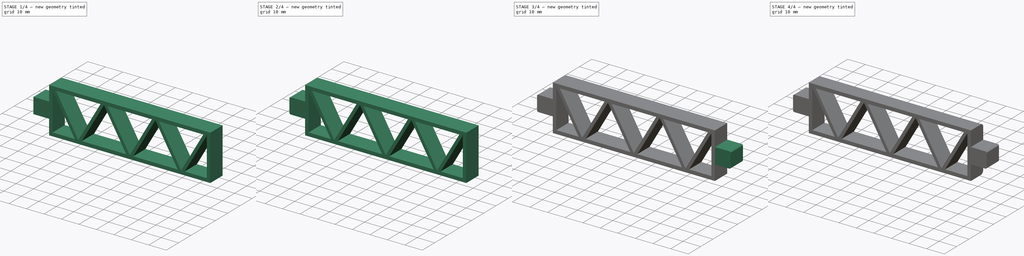
[diagram: build sequence overview — one tinted view per stage of 4, left to right]
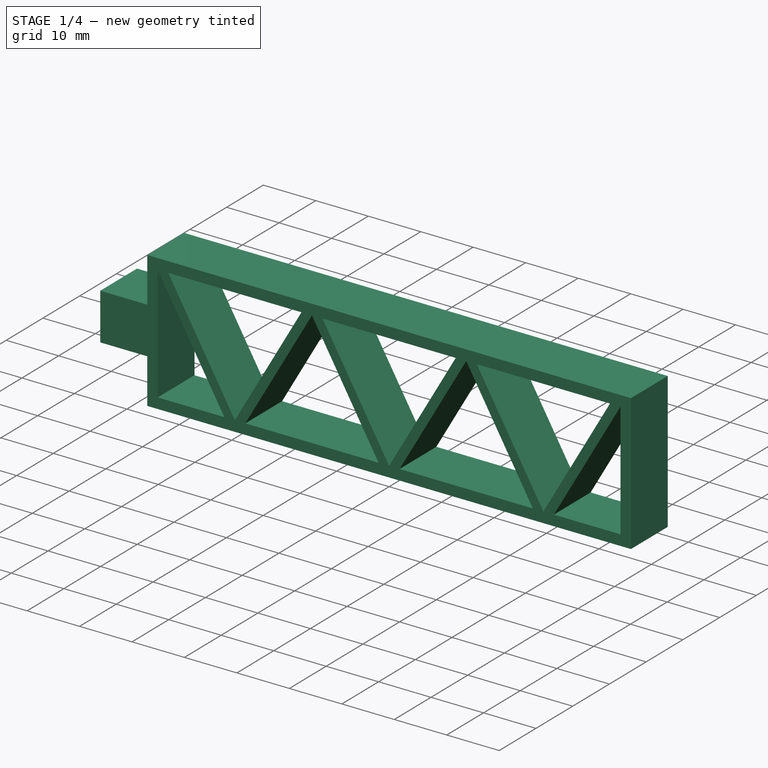
[diagram: stage 1 of 4 — iso view after this stage's code; geometry added in this stage tinted green]
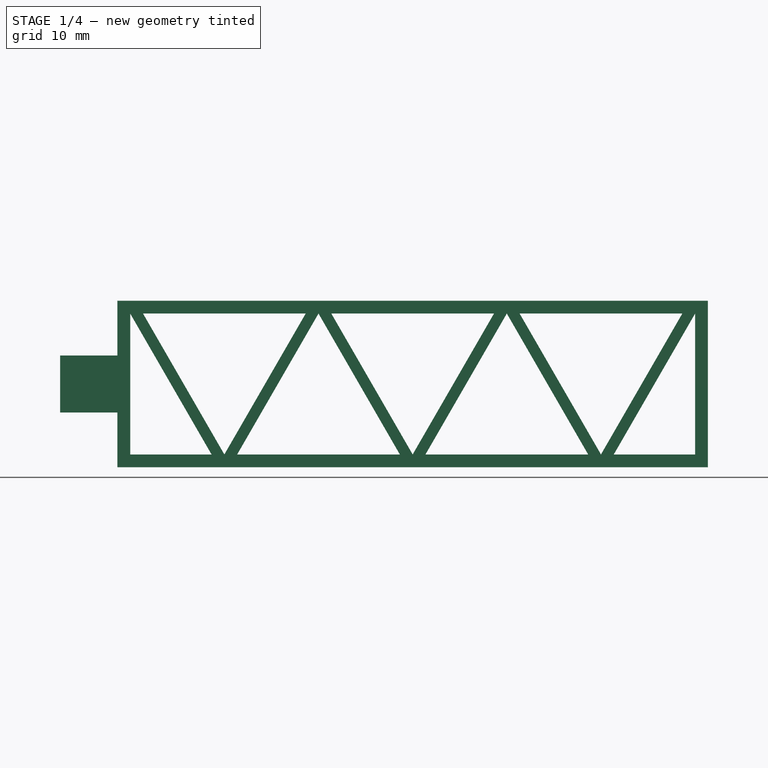
[diagram: stage 1 of 4 — front view after this stage's code; geometry added in this stage tinted green]
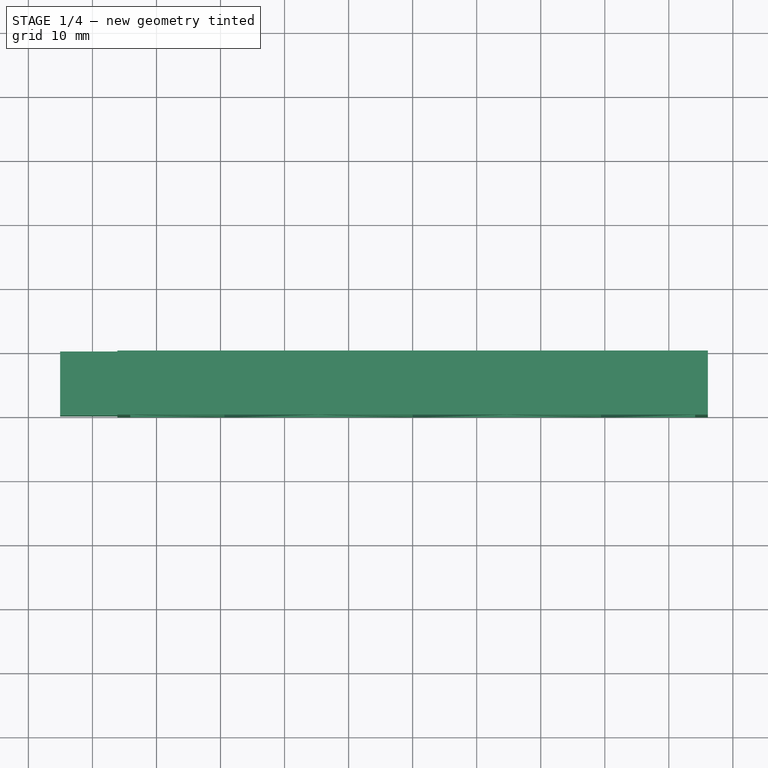
[diagram: stage 1 of 4 — top view after this stage's code; geometry added in this stage tinted green]
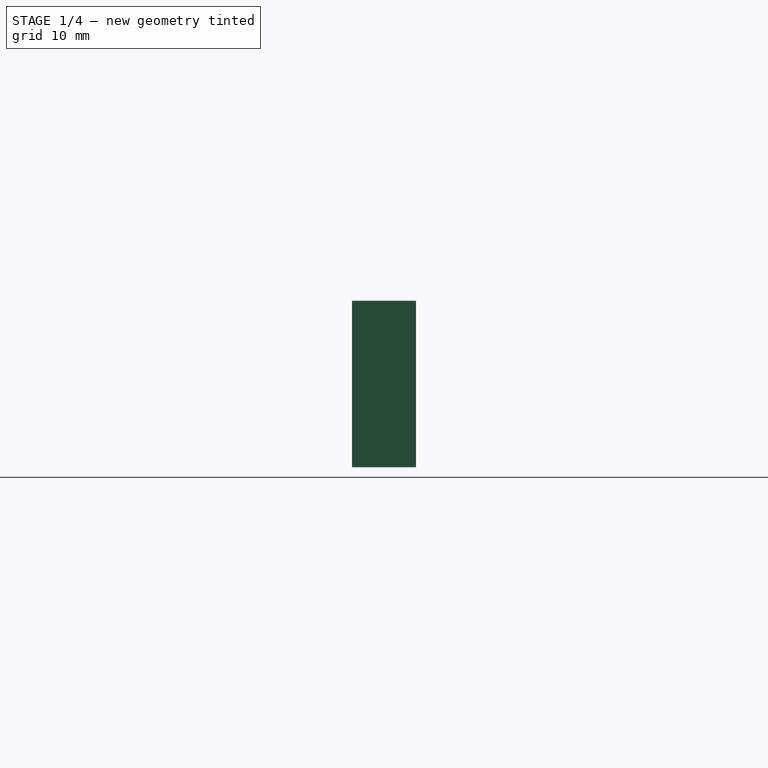
[diagram: stage 1 of 4 — right view after this stage's code; geometry added in this stage tinted green]
FCSTD DOCUMENT  (FreeCAD 0.18R16093 +53 (Git))
Label: been
License: All rights reserved
LicenseURL: http://en.wikipedia.org/wiki/All_rights_reserved
objects: PartDesign::Chamfer×4, Sketcher::SketchObject×3, PartDesign::Pad×3, PartDesign::Fillet×2, PartDesign::Body×1
note: 16 computed .brp shape members not serialized (recipe doc carries the construction recipe); baked Part::Feature solids carry a one-line shape summary decoded from their .brp

FEATURE [Sketcher::SketchObject] Sketch
  MapMode = 5
  Placement = pos=(0,0,0) rot=(1,0,0;1.5708rad)
  Support = -> [XZ_Plane]
  sketch-geometry (35):
    g0: LineSegment StartX=-46.1051 StartY=13 StartZ=0 EndX=46.1051 EndY=13 EndZ=0
    g1: LineSegment StartX=46.1051 StartY=13 StartZ=0 EndX=46.1051 EndY=-13 EndZ=0
    g2: LineSegment StartX=46.1051 StartY=-13 StartZ=0 EndX=-46.1051 EndY=-13 EndZ=0
    g3: LineSegment StartX=-46.1051 StartY=-13 StartZ=0 EndX=-46.1051 EndY=13 EndZ=0
    g4: LineSegment [constr] StartX=-44.1051 StartY=11 StartZ=0 EndX=44.1051 EndY=11 EndZ=0
    g5: LineSegment [constr] StartX=44.1051 StartY=11 StartZ=0 EndX=44.1051 EndY=-11 EndZ=0
    g6: LineSegment [constr] StartX=44.1051 StartY=-11 StartZ=0 EndX=-44.1051 EndY=-11 EndZ=0
    g7: LineSegment [constr] StartX=-44.1051 StartY=-11 StartZ=0 EndX=-44.1051 EndY=11 EndZ=0
    g8: LineSegment StartX=-44.1051 StartY=11 StartZ=0 EndX=-44.1051 EndY=-11 EndZ=0
    g9: LineSegment StartX=-44.1051 StartY=-11 StartZ=0 EndX=-31.4034 EndY=-11 EndZ=0
    g10: LineSegment StartX=-31.4034 StartY=-11 StartZ=0 EndX=-44.1051 EndY=11 EndZ=0
    g11: LineSegment StartX=-29.4034 StartY=-11 StartZ=0 EndX=-42.1051 EndY=11 EndZ=0
    g12: LineSegment StartX=-42.1051 StartY=11 StartZ=0 EndX=-16.7017 EndY=11 EndZ=0
    g13: LineSegment StartX=-16.7017 StartY=11 StartZ=0 EndX=-29.4034 EndY=-11 EndZ=0
    g14: LineSegment StartX=-14.7017 StartY=11 StartZ=0 EndX=-27.4034 EndY=-11 EndZ=0
    g15: LineSegment StartX=-27.4034 StartY=-11 StartZ=0 EndX=-2 EndY=-11 EndZ=0
    g16: LineSegment StartX=-2 StartY=-11 StartZ=0 EndX=-14.7017 EndY=11 EndZ=0
    g17: LineSegment StartX=-12.7017 StartY=11 StartZ=0 EndX=12.7017 EndY=11 EndZ=0
    g18: LineSegment StartX=12.7017 StartY=11 StartZ=0 EndX=7.709e-13 EndY=-11 EndZ=0
    g19: LineSegment StartX=7.702e-13 StartY=-11 StartZ=0 EndX=-12.7017 EndY=11 EndZ=0
    g20: LineSegment StartX=14.7017 StartY=11 StartZ=0 EndX=2 EndY=-11 EndZ=0
    g21: LineSegment StartX=2 StartY=-11 StartZ=0 EndX=27.4034 EndY=-11 EndZ=0
    g22: LineSegment StartX=27.4034 StartY=-11 StartZ=0 EndX=14.7017 EndY=11 EndZ=0
    g23: LineSegment StartX=16.7017 StartY=11 StartZ=0 EndX=42.1051 EndY=11 EndZ=0
    g24: LineSegment StartX=42.1051 StartY=11 StartZ=0 EndX=29.4034 EndY=-11 EndZ=0
    g25: LineSegment StartX=29.4034 StartY=-11 StartZ=0 EndX=16.7017 EndY=11 EndZ=0
    g26: LineSegment StartX=44.1051 StartY=11 StartZ=0 EndX=44.1051 EndY=-11 EndZ=0
    g27: LineSegment StartX=44.1051 StartY=-11 StartZ=0 EndX=31.4034 EndY=-11 EndZ=0
    g28: LineSegment StartX=31.4034 StartY=-11 StartZ=0 EndX=44.1051 EndY=11 EndZ=0
    g29: LineSegment [constr] StartX=-44.1051 StartY=11 StartZ=0 EndX=-42.1051 EndY=11 EndZ=0
    g30: LineSegment [constr] StartX=-16.7017 StartY=11 StartZ=0 EndX=-14.7017 EndY=11 EndZ=0
    g31: LineSegment [constr] StartX=-14.7017 StartY=11 StartZ=0 EndX=-12.7017 EndY=11 EndZ=0
    g32: LineSegment [constr] StartX=12.7017 StartY=11 StartZ=0 EndX=14.7017 EndY=11 EndZ=0
    g33: LineSegment [constr] StartX=14.7017 StartY=11 StartZ=0 EndX=16.7017 EndY=11 EndZ=0
    g34: LineSegment [constr] StartX=42.1051 StartY=11 StartZ=0 EndX=44.1051 EndY=11 EndZ=0
  constraints (93):
    c: Coincident(g0,g1)
    c: Coincident(g1,g2)
    c: Coincident(g2,g3)
    c: Coincident(g3,g0)
    c: Horizontal(g2)
    c: Vertical(g1)
    c: Distance(g3) = 26
    c: Coincident(g4,g5)
    c: Coincident(g5,g6)
    c: Coincident(g6,g7)
    c: Coincident(g7,g4)
    c: Horizontal(g4)
    c: Horizontal(g6)
    c: Vertical(g5)
    c: Vertical(g7)
    c: DistanceX(g0,g4) = 2
    c: Symmetric(g0,g0,g-2)
    c: DistanceY(g4,g0) = 2
    c: Symmetric(g0,g2,g-1)
    c: DistanceY(g2,g6) = 2
    c: DistanceX(g5,g1) = 2
    c: Coincident(g8,g9)
    c: Coincident(g9,g10)
    c: Coincident(g10,g8)
    c: Coincident(g8,g6)
    c: Coincident(g8,g4)
    c: PointOnObject(g9,g6)
    c: Coincident(g11,g12)
    c: Coincident(g12,g13)
    c: Coincident(g13,g11)
    c: PointOnObject(g11,g4)
    c: PointOnObject(g11,g6)
    c: Parallel(g11,g10)
    c: PointOnObject(g12,g4)
    c: Coincident(g14,g15)
    c: Coincident(g15,g16)
    c: Coincident(g16,g14)
    c: PointOnObject(g14,g4)
    c: PointOnObject(g14,g6)
    c: PointOnObject(g15,g6)
    c: Parallel(g16,g11)
    c: Equal(g12,g13)
    c: Equal(g13,g11)
    c: Equal(g14,g16)
    c: Coincident(g17,g18)
    c: Coincident(g18,g19)
    c: Coincident(g19,g17)
    c: PointOnObject(g17,g4)
    c: PointOnObject(g17,g4)
    c: PointOnObject(g18,g6)
    c: Equal(g19,g18)
    c: Equal(g19,g17)
    c: Coincident(g20,g21)
    c: Coincident(g21,g22)
    c: Coincident(g22,g20)
    c: PointOnObject(g20,g4)
    c: PointOnObject(g20,g6)
    c: PointOnObject(g21,g6)
    c: Equal(g22,g21)
    c: Equal(g22,g20)
    c: Coincident(g23,g24)
    c: Coincident(g24,g25)
    c: Coincident(g25,g23)
    c: PointOnObject(g23,g4)
    c: PointOnObject(g23,g4)
    c: PointOnObject(g24,g6)
    c: Equal(g25,g24)
    c: Equal(g24,g23)
    c: Coincident(g26,g27)
    c: Coincident(g27,g28)
    c: Coincident(g28,g26)
    c: Coincident(g26,g4)
    c: Coincident(g26,g5)
    c: PointOnObject(g27,g6)
    c: Equal(g28,g24)
    c: Equal(g29,g30)
    c: Equal(g30,g31)
    c: Equal(g31,g32)
    c: Equal(g32,g33)
    c: Coincident(g29,g8)
    c: Coincident(g29,g11)
    c: Coincident(g30,g12)
    c: Coincident(g30,g14)
    c: Coincident(g31,g14)
    c: Coincident(g31,g17)
    c: Coincident(g32,g17)
    c: Coincident(g23,g33)
    c: Coincident(g33,g20)
    c: Coincident(g32,g20)
    c: Coincident(g34,g23)
    c: Coincident(g34,g26)
    c: Equal(g33,g34)
    c: Distance(g34) = 2
FEATURE [PartDesign::Pad] Pad
  Length = 10
  Length2 = 100
  Placement = pos=(0,0,0) rot=(1,0,0;1.5708rad)
  Profile = -> Sketch
  Type = 0
FEATURE [Sketcher::SketchObject] Sketch001
  ExternalGeometry = -> [Pad]
  MapMode = 5
  Placement = pos=(-46.1051,0,0) rot=(0.707107,0,-0.707107;3.14159rad)
  Support = -> [Pad]
  sketch-geometry (4):
    g0: LineSegment StartX=-4.45 StartY=10 StartZ=0 EndX=4.45 EndY=10 EndZ=0
    g1: LineSegment StartX=4.45 StartY=10 StartZ=0 EndX=4.45 EndY=0 EndZ=0
    g2: LineSegment StartX=4.45 StartY=0 StartZ=0 EndX=-4.45 EndY=0 EndZ=0
    g3: LineSegment StartX=-4.45 StartY=0 StartZ=0 EndX=-4.45 EndY=10 EndZ=0
  constraints (11):
    c: Coincident(g0,g1)
    c: Coincident(g1,g2)
    c: Coincident(g2,g3)
    c: Coincident(g3,g0)
    c: Horizontal(g0)
    c: Vertical(g1)
    c: Vertical(g3)
    c: PointOnObject(g0,g-3)
    c: PointOnObject(g1,g-1)
    c: Symmetric(g2,g1,g-2)
    c: Distance(g0) = 8.9
FEATURE [PartDesign::Pad] Pad001
  BaseFeature = -> Pad
  Length = 8.95
  Length2 = 100
  Placement = pos=(0,0,0) rot=(1,0,0;1.5708rad)
  Profile = -> Sketch001
  Type = 0
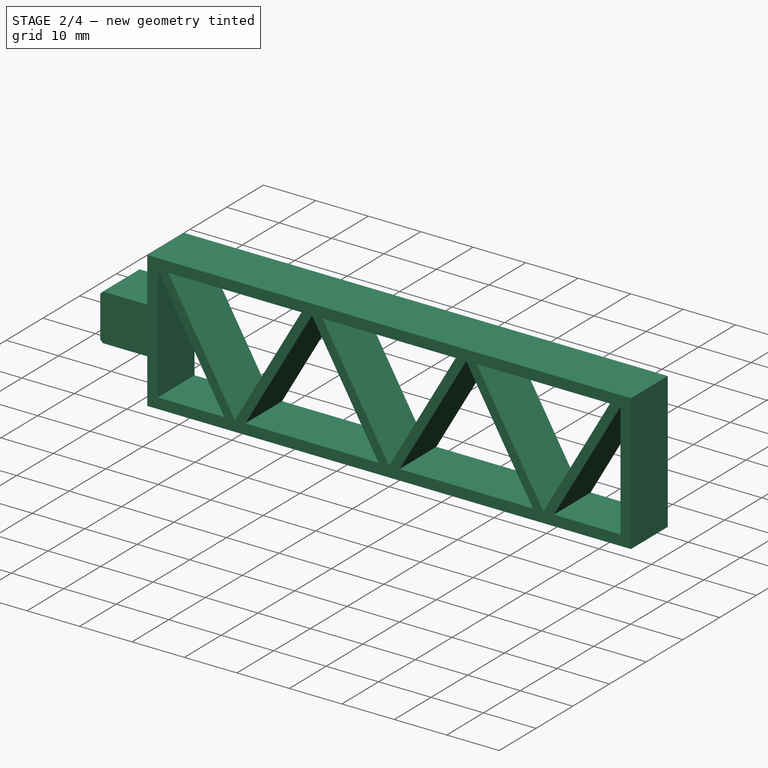
[diagram: stage 2 of 4 — iso view after this stage's code; geometry added in this stage tinted green]
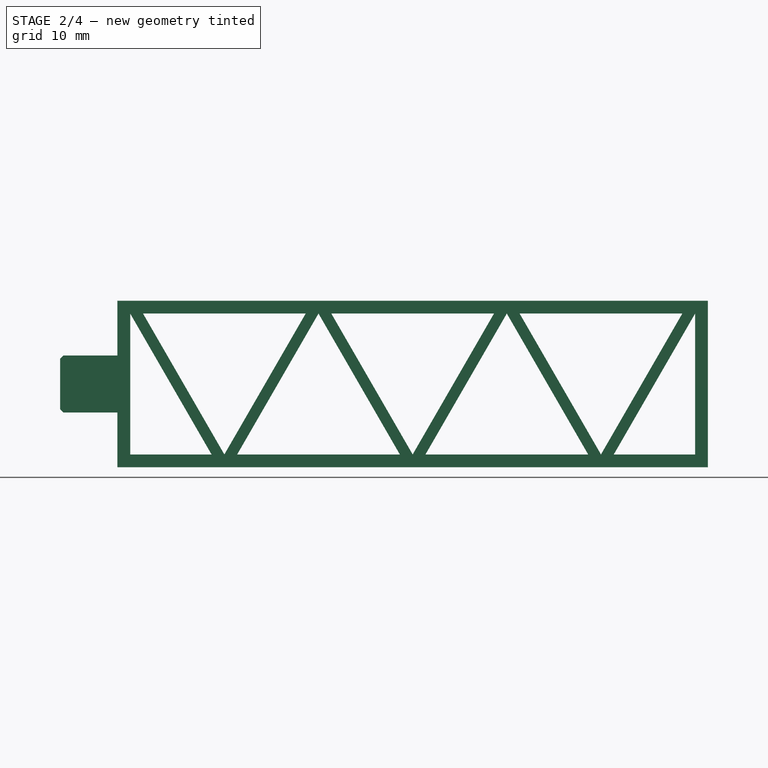
[diagram: stage 2 of 4 — front view after this stage's code; geometry added in this stage tinted green]
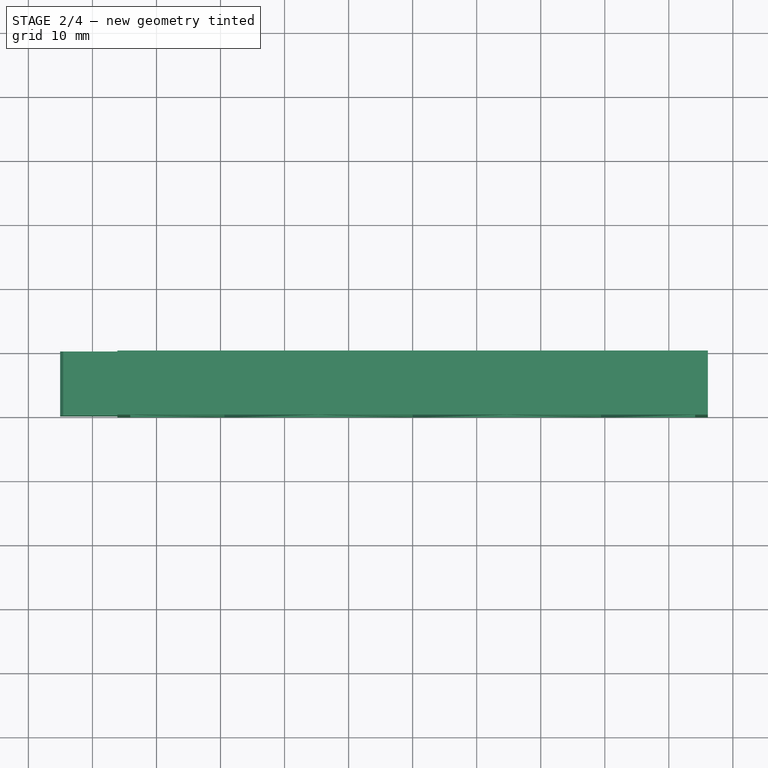
[diagram: stage 2 of 4 — top view after this stage's code; geometry added in this stage tinted green]
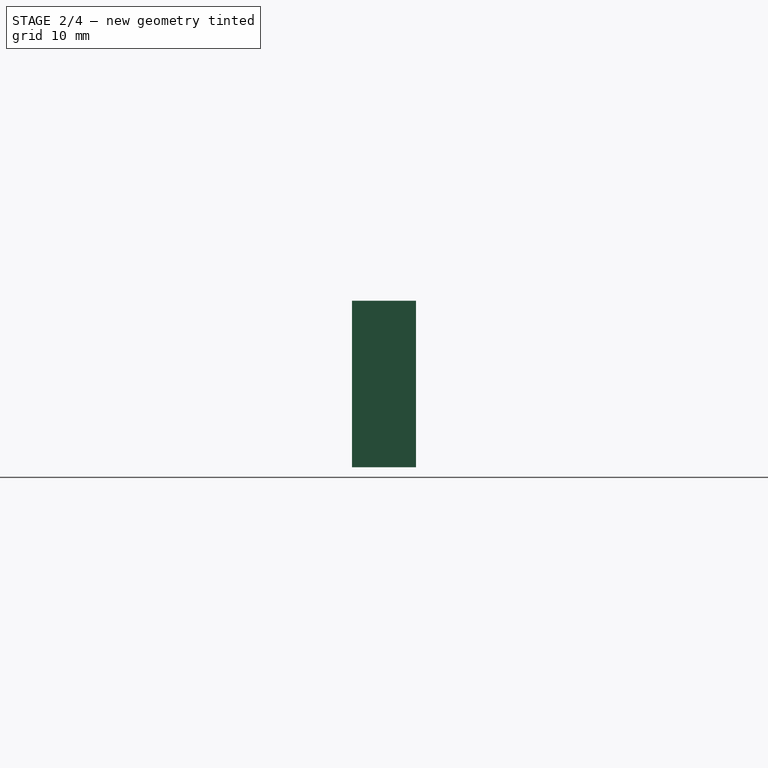
[diagram: stage 2 of 4 — right view after this stage's code; geometry added in this stage tinted green]
FEATURE [PartDesign::Chamfer] Chamfer
  Base = -> Pad001 [Edge61]
  BaseFeature = -> Pad001
  Placement = pos=(0,0,0) rot=(1,0,0;1.5708rad)
  Size = 0.5
FEATURE [PartDesign::Chamfer] Chamfer001
  Base = -> Chamfer [Edge42]
  BaseFeature = -> Chamfer
  Placement = pos=(0,0,0) rot=(1,0,0;1.5708rad)
  Size = 0.5
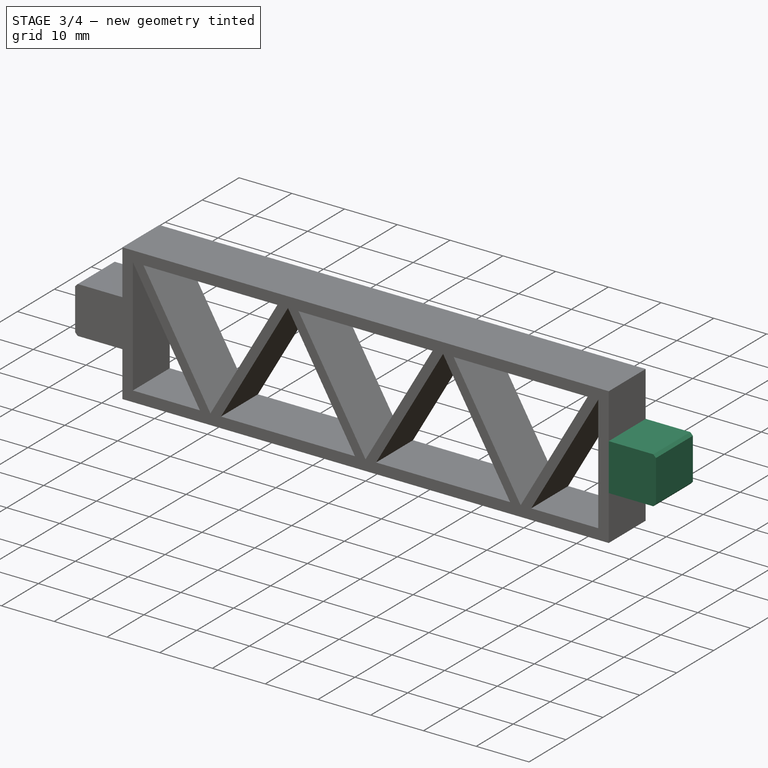
[diagram: stage 3 of 4 — iso view after this stage's code; geometry added in this stage tinted green]
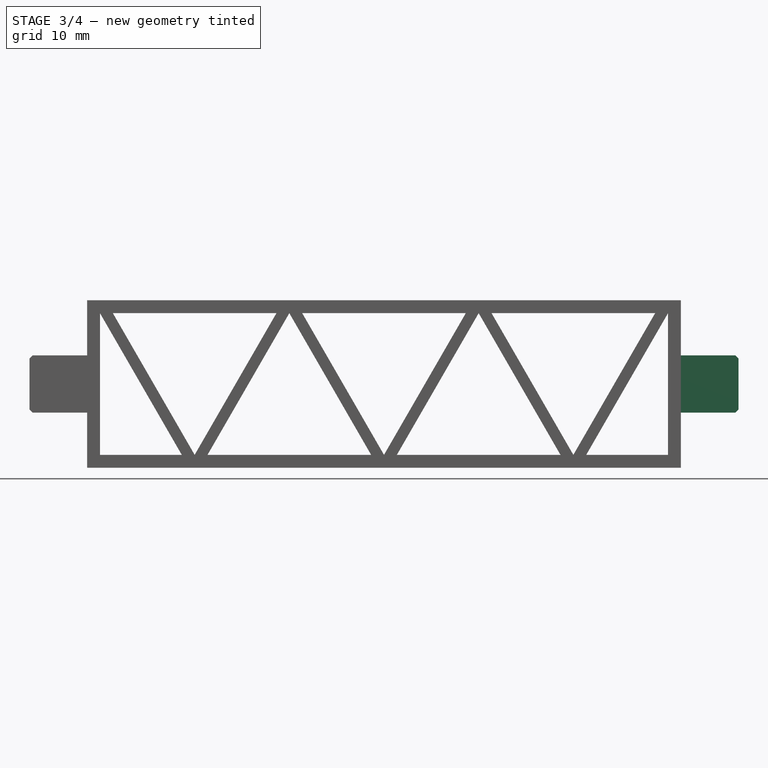
[diagram: stage 3 of 4 — front view after this stage's code; geometry added in this stage tinted green]
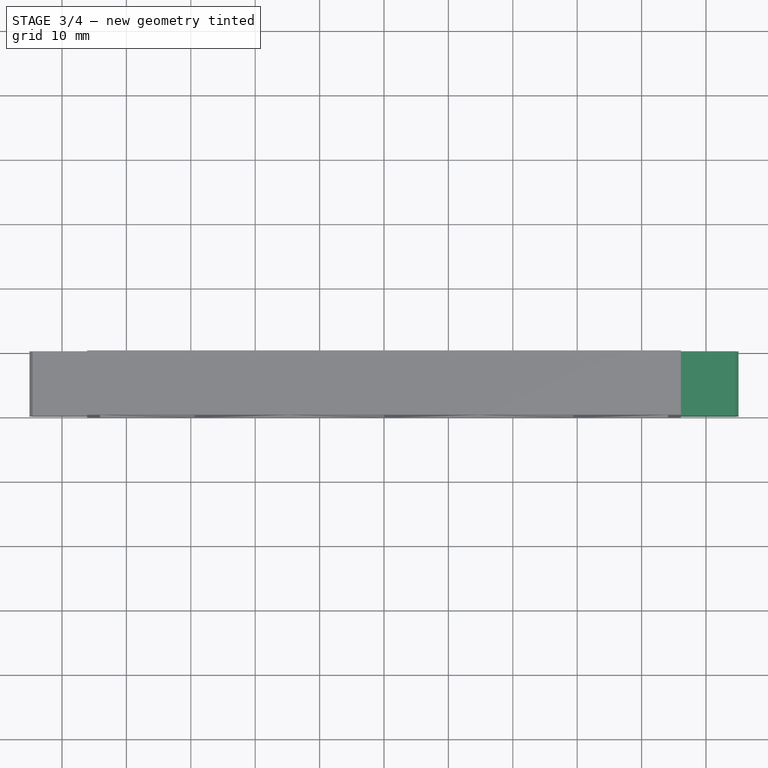
[diagram: stage 3 of 4 — top view after this stage's code; geometry added in this stage tinted green]
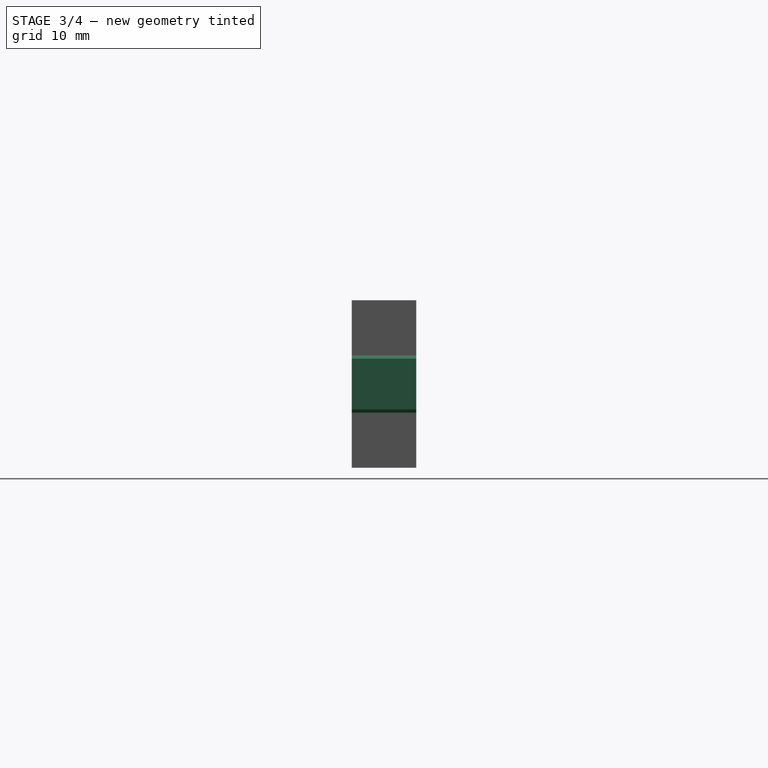
[diagram: stage 3 of 4 — right view after this stage's code; geometry added in this stage tinted green]
FEATURE [Sketcher::SketchObject] Sketch002
  ExternalGeometry = -> [Chamfer001]
  MapMode = 5
  Placement = pos=(46.1051,0,0) rot=(0.707107,0,0.707107;3.14159rad)
  Support = -> [Chamfer001]
  sketch-geometry (4):
    g0: LineSegment StartX=-4.45 StartY=10 StartZ=0 EndX=4.45 EndY=10 EndZ=0
    g1: LineSegment StartX=4.45 StartY=10 StartZ=0 EndX=4.45 EndY=0 EndZ=0
    g2: LineSegment StartX=4.45 StartY=0 StartZ=0 EndX=-4.45 EndY=0 EndZ=0
    g3: LineSegment StartX=-4.45 StartY=0 StartZ=0 EndX=-4.45 EndY=10 EndZ=0
  constraints (11):
    c: Coincident(g0,g1)
    c: Coincident(g1,g2)
    c: Coincident(g2,g3)
    c: Coincident(g3,g0)
    c: Horizontal(g0)
    c: Vertical(g1)
    c: Vertical(g3)
    c: PointOnObject(g0,g-3)
    c: PointOnObject(g1,g-1)
    c: Symmetric(g2,g1,g-2)
    c: Distance(g0) = 8.9
FEATURE [PartDesign::Pad] Pad002
  BaseFeature = -> Chamfer001
  Length = 8.95
  Length2 = 100
  Placement = pos=(0,0,0) rot=(1,0,0;1.5708rad)
  Profile = -> Sketch002
  Type = 0
FEATURE [PartDesign::Chamfer] Chamfer002
  Base = -> Pad002 [Edge106]
  BaseFeature = -> Pad002
  Placement = pos=(0,0,0) rot=(1,0,0;1.5708rad)
  Size = 0.5
FEATURE [PartDesign::Chamfer] Chamfer003
  Base = -> Chamfer002 [Edge40]
  BaseFeature = -> Chamfer002
  Placement = pos=(0,0,0) rot=(1,0,0;1.5708rad)
  Size = 0.5
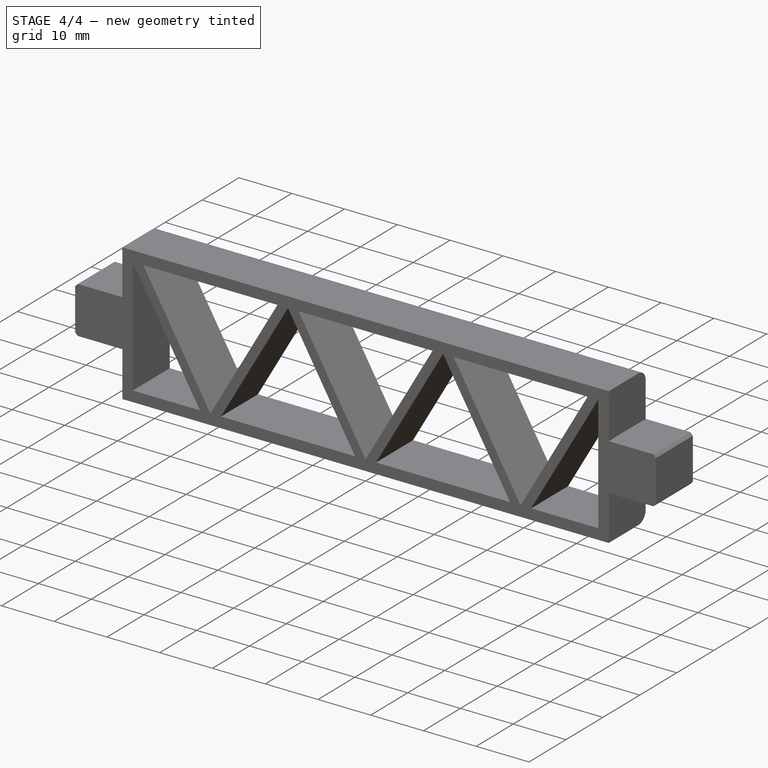
[diagram: stage 4 of 4 — iso view after this stage's code; geometry added in this stage tinted green]
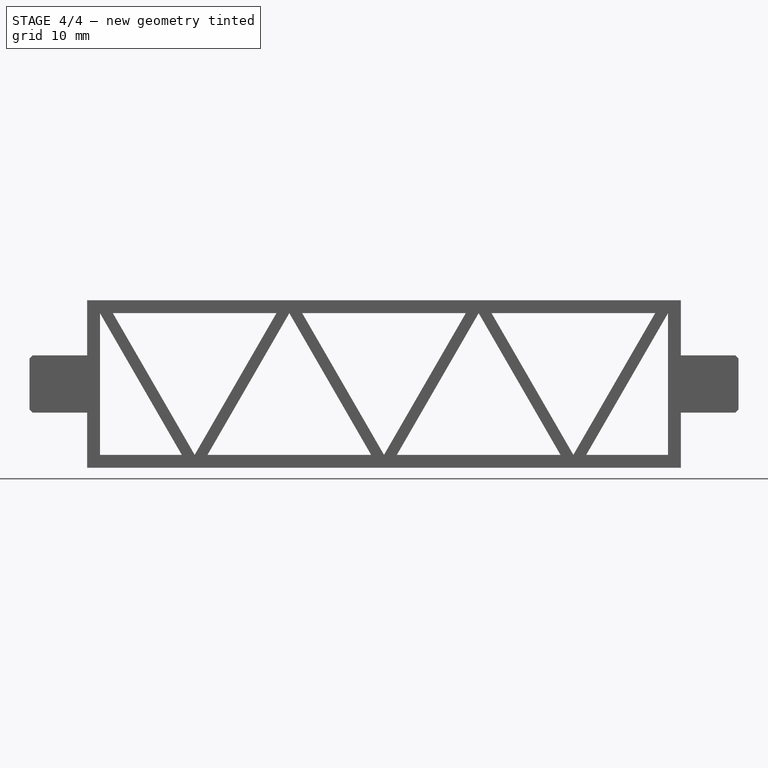
[diagram: stage 4 of 4 — front view after this stage's code; geometry added in this stage tinted green]
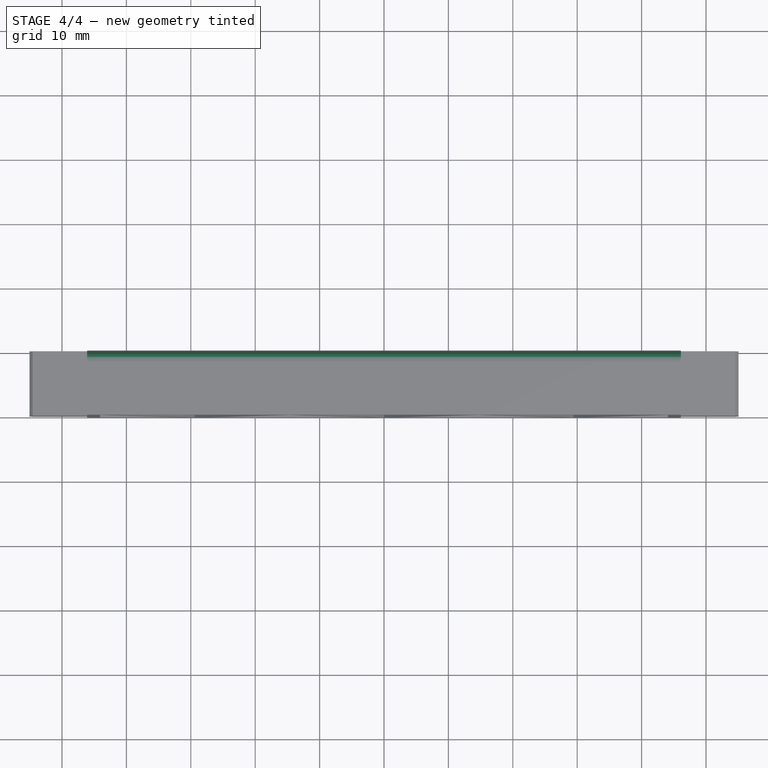
[diagram: stage 4 of 4 — top view after this stage's code; geometry added in this stage tinted green]
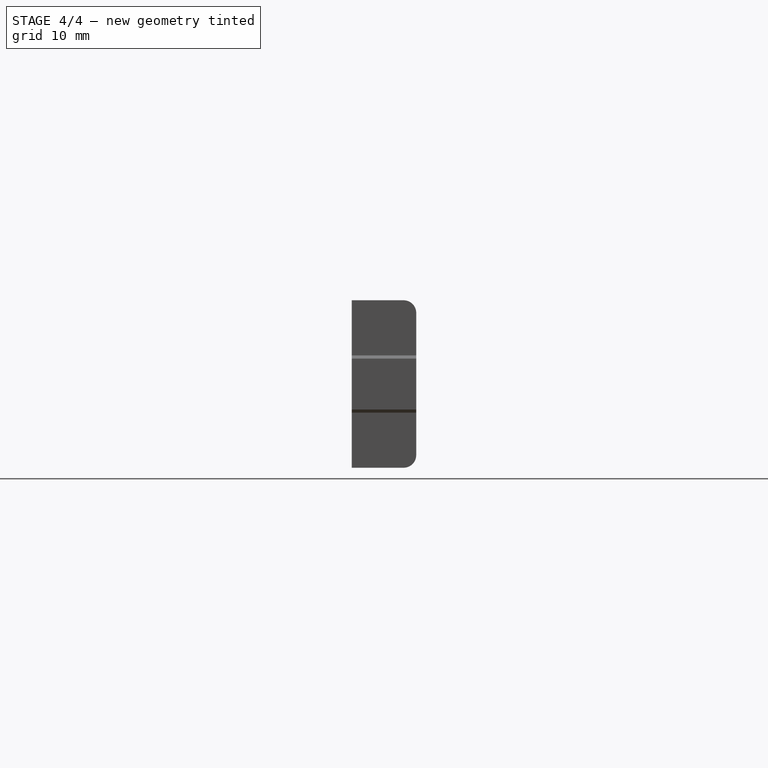
[diagram: stage 4 of 4 — right view after this stage's code; geometry added in this stage tinted green]
FEATURE [PartDesign::Fillet] Fillet
  Base = -> Chamfer003 [Edge18]
  BaseFeature = -> Chamfer003
  Placement = pos=(0,0,0) rot=(1,0,0;1.5708rad)
  Radius = 1.95
FEATURE [PartDesign::Fillet] Fillet001
  Base = -> Fillet [Edge7]
  BaseFeature = -> Fillet
  Placement = pos=(0,0,0) rot=(1,0,0;1.5708rad)
  Radius = 1.95
FEATURE [PartDesign::Body] Body
  Group = -> [Sketch,Pad,Sketch001,Pad001,Chamfer,Chamfer001,Sketch002,Pad002,Chamfer002,Chamfer003,Fillet,Fillet001]
  Origin = -> Origin
  Tip = -> Fillet001
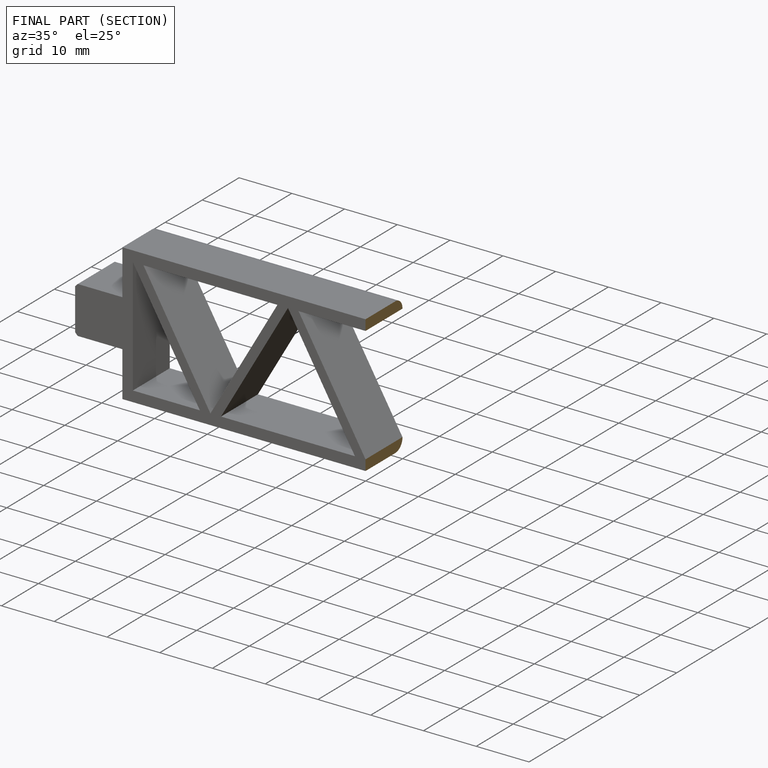
[diagram: finished part — half-section view (interior)]
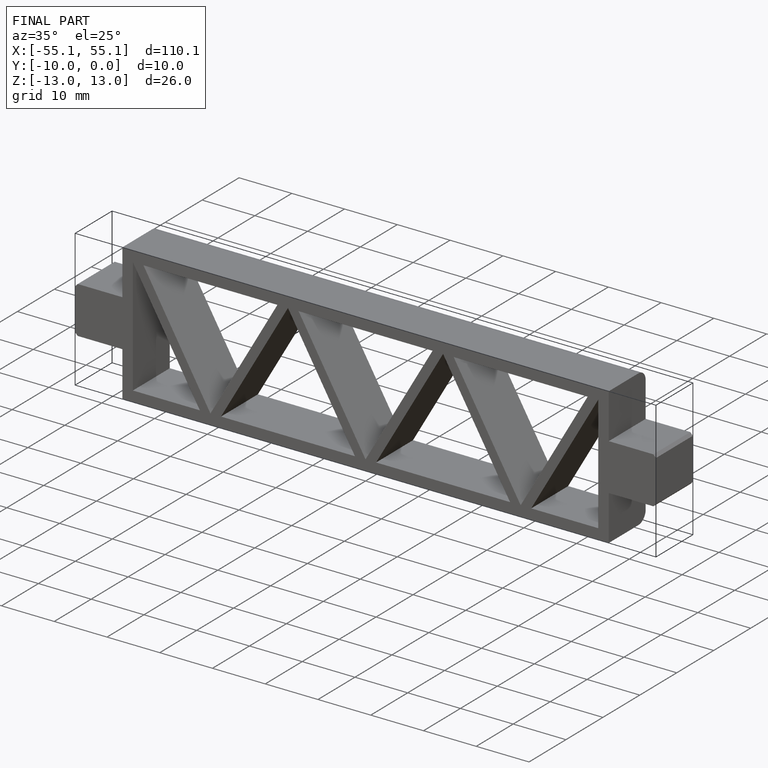
[diagram: finished part — iso view with bounding-box wireframe]
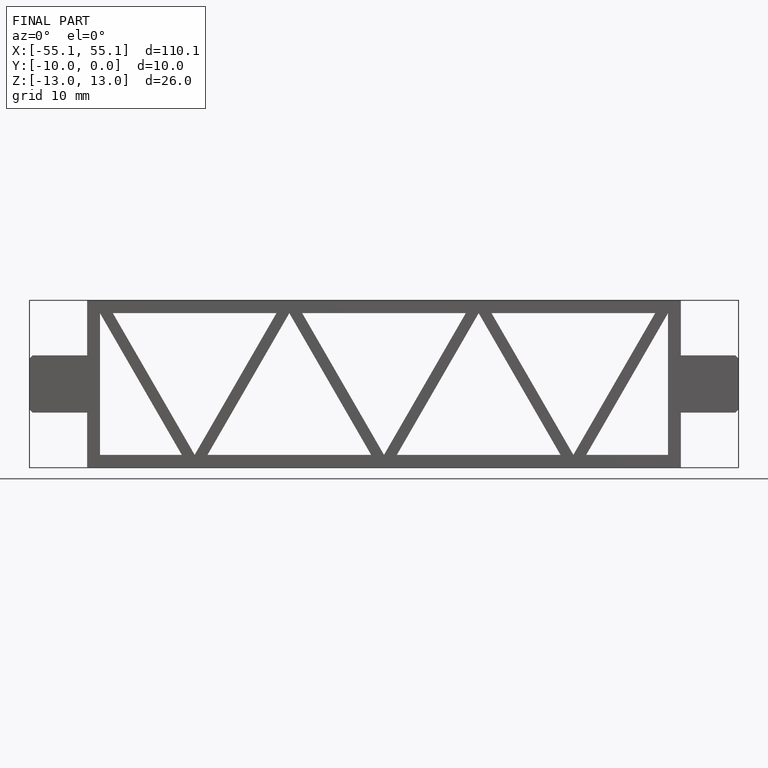
[diagram: finished part — front view with bounding-box wireframe]
